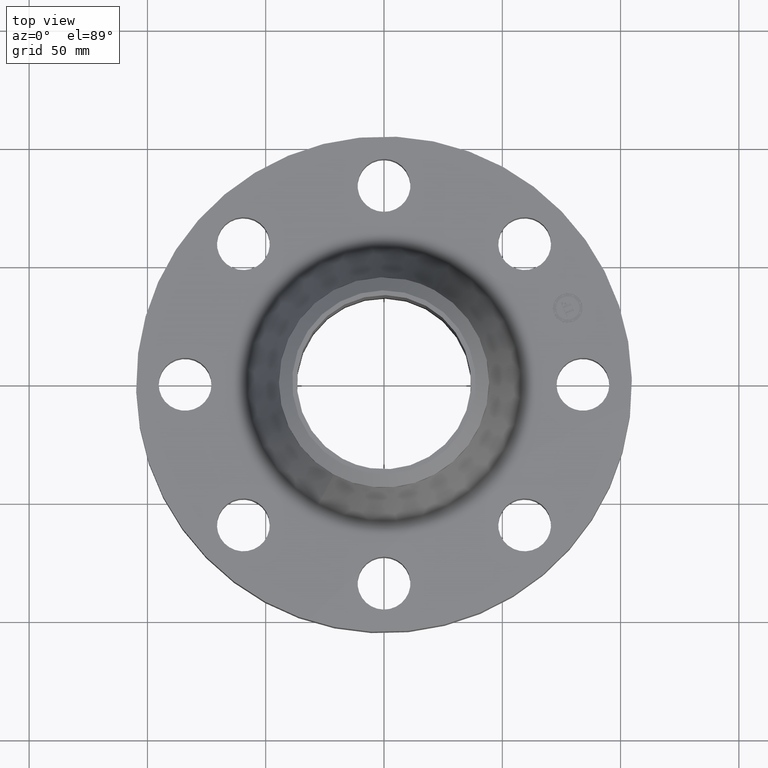
[diagram: clean part render]
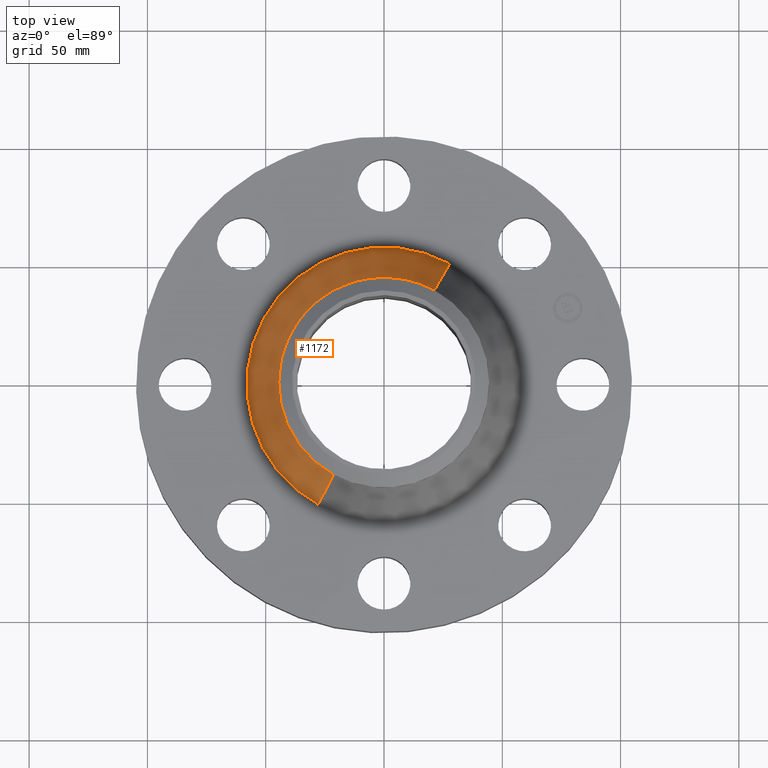
[diagram: same view with one face highlighted and labeled with its STEP entity id]
A machine part, top view. The second image highlights one B-rep face of the part: STEP entity #1172.
In plain terms, the highlighted conical surface has half-angle 19.357 deg.
Its self-contained STEP definition (entity closure, byte-faithful):
#984=AXIS2_PLACEMENT_3D('Circle Axis2P3D',#982,#983,$) ;
#1145=AXIS2_PLACEMENT_3D('Cone Axis2P3D',#1142,#1143,#1144) ;
#1156=AXIS2_PLACEMENT_3D('Circle Axis2P3D',#1154,#1155,$) ;
#979=CARTESIAN_POINT('Vertex',(-1.09396064072,-2.00248152086,1.33022511755)) ;
#982=CARTESIAN_POINT('Axis2P3D Location',(0.,0.,1.33022511755)) ;
#986=CARTESIAN_POINT('Vertex',(1.09396064072,2.00248152086,1.33022511755)) ;
#1142=CARTESIAN_POINT('Axis2P3D Location',(0.,0.,2.84400087905)) ;
#1147=CARTESIAN_POINT('Line Origine',(-0.966477666638,-1.76912550209,2.0871129983)) ;
#1151=CARTESIAN_POINT('Vertex',(-0.838994692563,-1.53576948332,2.84400087905)) ;
#1154=CARTESIAN_POINT('Axis2P3D Location',(0.,0.,2.84400087905)) ;
#1158=CARTESIAN_POINT('Vertex',(0.838994692562,1.53576948332,2.84400087905)) ;
#1161=CARTESIAN_POINT('Line Origine',(0.966477666638,1.76912550209,2.0871129983)) ;
#983=DIRECTION('Axis2P3D Direction',(-0.,0.,-0.0393700787402)) ;
#1143=DIRECTION('Axis2P3D Direction',(0.,0.,-0.0393700787402)) ;
#1144=DIRECTION('Axis2P3D XDirection',(-0.0188750212049,-0.0345504945626,0.)) ;
#1148=DIRECTION('Vector Direction',(-0.00625626458109,-0.0114520154995,-0.0371444961535)) ;
#1155=DIRECTION('Axis2P3D Direction',(-0.,0.,-0.0393700787402)) ;
#1162=DIRECTION('Vector Direction',(0.00625626458109,0.0114520154995,-0.0371444961535)) ;
#1149=VECTOR('Line Direction',#1148,0.0393700787402) ;
#1163=VECTOR('Line Direction',#1162,0.0393700787402) ;
#1167=ORIENTED_EDGE('',*,*,#988,.F.) ;
#1168=ORIENTED_EDGE('',*,*,#1153,.T.) ;
#1169=ORIENTED_EDGE('',*,*,#1160,.T.) ;
#1170=ORIENTED_EDGE('',*,*,#1165,.F.) ;
#1172=ADVANCED_FACE('PartBody',(#1171),#1146,.T.) ;
#985=CIRCLE('generated circle',#984,2.28181553261) ;
#1157=CIRCLE('generated circle',#1156,1.75000000001) ;
#1146=CONICAL_SURFACE('Cone',#1145,1.75000000001,0.337847830751) ;
#988=EDGE_CURVE('',#980,#987,#985,.T.) ;
#1153=EDGE_CURVE('',#980,#1152,#1150,.F.) ;
#1160=EDGE_CURVE('',#1152,#1159,#1157,.T.) ;
#1165=EDGE_CURVE('',#987,#1159,#1164,.F.) ;
#1166=EDGE_LOOP('',(#1167,#1168,#1169,#1170)) ;
#1171=FACE_OUTER_BOUND('',#1166,.T.) ;
#1150=LINE('Line',#1147,#1149) ;
#1164=LINE('Line',#1161,#1163) ;
#980=VERTEX_POINT('',#979) ;
#987=VERTEX_POINT('',#986) ;
#1152=VERTEX_POINT('',#1151) ;
#1159=VERTEX_POINT('',#1158) ;